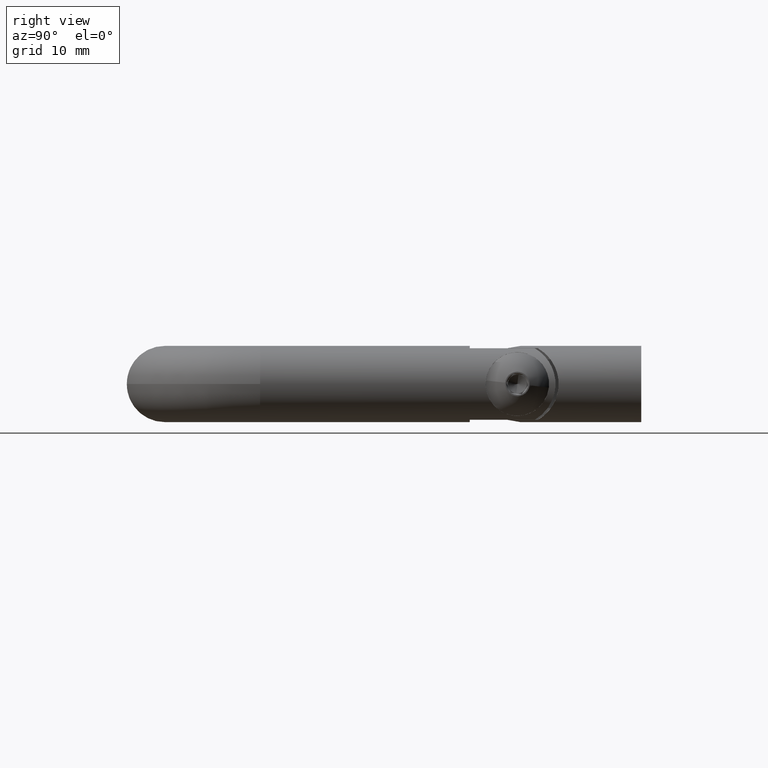
[diagram: clean part render]
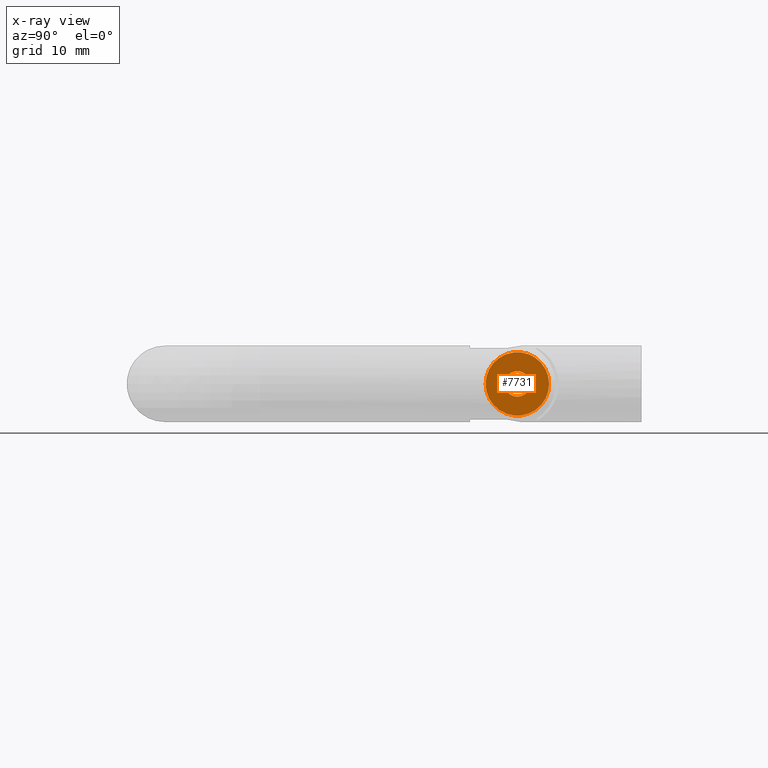
[diagram: x-ray — body ghosted, one internal face saturated and labeled with its STEP entity id]
A machine part, right view, then the same camera in x-ray: the body is ghosted and one INTERNAL B-rep face — a face not visible from any outside direction — is saturated and labeled: STEP entity #7731.
In plain terms, the highlighted planar face has unit normal (1, 0, -0).
Its self-contained STEP definition (entity closure, byte-faithful):
#1125 = AXIS2_PLACEMENT_3D ( 'NONE', #4049, #14967, #13602 ) ;
#1761 = DIRECTION ( 'NONE',  ( 1.294224922628222493E-31, -1.000000000000000000, -6.409494854920720919E-31 ) ) ;
#2383 = EDGE_CURVE ( 'NONE', #9477, #7362, #7171, .T. ) ;
#2763 = CARTESIAN_POINT ( 'NONE',  ( 1.345431158894476169E-16, 2.799999999999994937, 2.009499999999999176 ) ) ;
#2865 = EDGE_LOOP ( 'NONE', ( #6506, #5508 ) ) ;
#3317 = ORIENTED_EDGE ( 'NONE', *, *, #4847, .F. ) ;
#3513 = EDGE_LOOP ( 'NONE', ( #3317, #10013 ) ) ;
#4049 = CARTESIAN_POINT ( 'NONE',  ( 0.000000000000000000, 2.799999999999994937, 0.000000000000000000 ) ) ;
#4738 = VERTEX_POINT ( 'NONE', #11184 ) ;
#4755 = CIRCLE ( 'NONE', #12726, 2.009500000000009390 ) ;
#4847 = EDGE_CURVE ( 'NONE', #7362, #9477, #13242, .T. ) ;
#5508 = ORIENTED_EDGE ( 'NONE', *, *, #13787, .T. ) ;
#5640 = CIRCLE ( 'NONE', #14421, 2.009500000000009390 ) ;
#5793 = DIRECTION ( 'NONE',  ( 1.294224922628222493E-31, -1.000000000000000000, -6.409494854920720919E-31 ) ) ;
#6048 = VERTEX_POINT ( 'NONE', #2763 ) ;
#6063 = DIRECTION ( 'NONE',  ( 5.551115123125754352E-17, 0.000000000000000000, -1.000000000000000000 ) ) ;
#6506 = ORIENTED_EDGE ( 'NONE', *, *, #8019, .T. ) ;
#6725 = DIRECTION ( 'NONE',  ( 5.551115123125754352E-17, 0.000000000000000000, -1.000000000000000000 ) ) ;
#6905 = CARTESIAN_POINT ( 'NONE',  ( 3.347676434173884299E-16, 2.799999999999994937, 4.999999999999999112 ) ) ;
#7171 = CIRCLE ( 'NONE', #1125, 5.000000000000023981 ) ;
#7362 = VERTEX_POINT ( 'NONE', #10935 ) ;
#7434 = AXIS2_PLACEMENT_3D ( 'NONE', #14851, #7655, #10080 ) ;
#7655 = DIRECTION ( 'NONE',  ( 1.294224922628221617E-31, -1.000000000000000000, 5.669937756275993450E-31 ) ) ;
#7731 = ADVANCED_FACE ( 'NONE', ( #10957, #11663 ), #12428, .F. ) ;
#8019 = EDGE_CURVE ( 'NONE', #4738, #6048, #4755, .T. ) ;
#8412 = AXIS2_PLACEMENT_3D ( 'NONE', #9492, #5793, #11780 ) ;
#9477 = VERTEX_POINT ( 'NONE', #6905 ) ;
#9492 = CARTESIAN_POINT ( 'NONE',  ( 0.000000000000000000, 2.799999999999994937, 0.000000000000000000 ) ) ;
#10013 = ORIENTED_EDGE ( 'NONE', *, *, #2383, .F. ) ;
#10080 = DIRECTION ( 'NONE',  ( 5.551115123125754352E-17, -5.669937756275993450E-31, -1.000000000000000000 ) ) ;
#10866 = DIRECTION ( 'NONE',  ( 1.294224922628222493E-31, -1.000000000000000000, -6.409494854920720919E-31 ) ) ;
#10935 = CARTESIAN_POINT ( 'NONE',  ( 2.775557561562890858E-16, 2.799999999999994937, -5.000000000000023981 ) ) ;
#10957 = FACE_OUTER_BOUND ( 'NONE', #3513, .T. ) ;
#11184 = CARTESIAN_POINT ( 'NONE',  ( 1.115496583992125576E-16, 2.799999999999994937, -2.009500000000009390 ) ) ;
#11663 = FACE_BOUND ( 'NONE', #2865, .T. ) ;
#11780 = DIRECTION ( 'NONE',  ( 5.551115123125754969E-17, 0.000000000000000000, -1.000000000000000000 ) ) ;
#12428 = PLANE ( 'NONE',  #7434 ) ;
#12726 = AXIS2_PLACEMENT_3D ( 'NONE', #13365, #10866, #6063 ) ;
#13242 = CIRCLE ( 'NONE', #8412, 5.000000000000023981 ) ;
#13365 = CARTESIAN_POINT ( 'NONE',  ( 0.000000000000000000, 2.799999999999994937, 0.000000000000000000 ) ) ;
#13602 = DIRECTION ( 'NONE',  ( 5.551115123125754969E-17, 0.000000000000000000, -1.000000000000000000 ) ) ;
#13787 = EDGE_CURVE ( 'NONE', #6048, #4738, #5640, .T. ) ;
#13898 = CARTESIAN_POINT ( 'NONE',  ( 0.000000000000000000, 2.799999999999994937, 0.000000000000000000 ) ) ;
#14421 = AXIS2_PLACEMENT_3D ( 'NONE', #13898, #1761, #6725 ) ;
#14851 = CARTESIAN_POINT ( 'NONE',  ( 2.009500000000000952, 2.799999999999994937, 0.000000000000000000 ) ) ;
#14967 = DIRECTION ( 'NONE',  ( 1.294224922628222493E-31, -1.000000000000000000, -6.409494854920720919E-31 ) ) ;